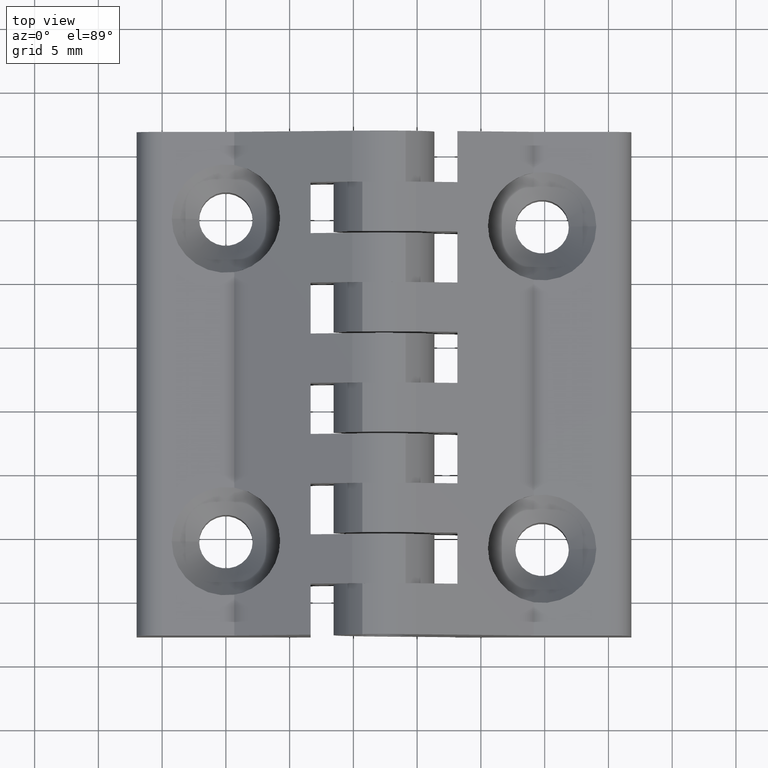
[diagram: clean part render]
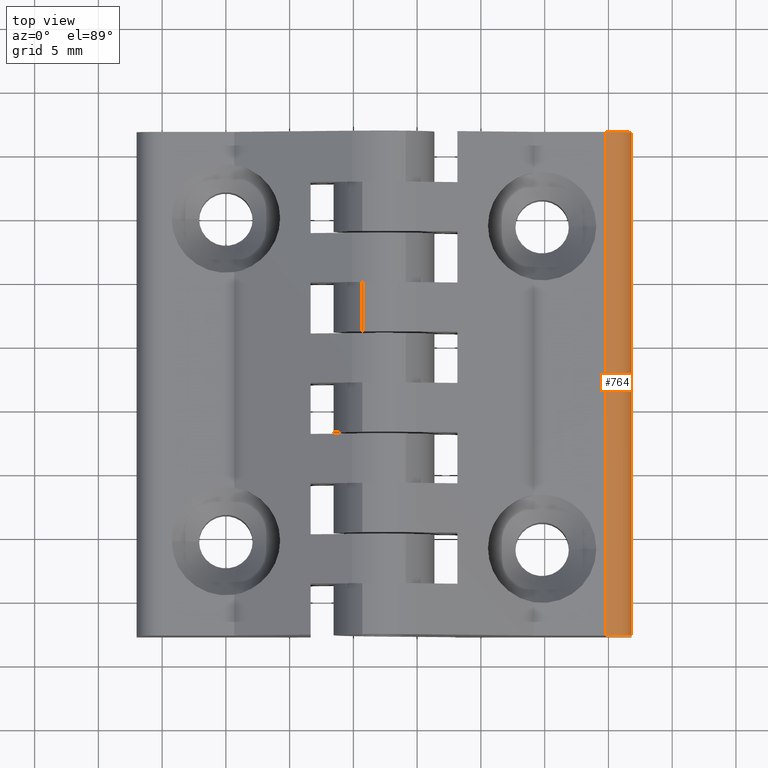
[diagram: same view with one face highlighted and labeled with its STEP entity id]
A machine part, top view. The second image highlights one B-rep face of the part: STEP entity #764.
In plain terms, the highlighted cylindrical surface (edge-blend (fillet) strip) has radius 2 mm, axis along (0, -1, 0).
Its self-contained STEP definition (entity closure, byte-faithful):
#706=CARTESIAN_POINT('',(31.799999999872881,6.799999999814439,6.999999999972005));
#707=VERTEX_POINT('',#706);
#714=CARTESIAN_POINT('',(31.799999999872881,-32.700000000027558,6.999999999972006));
#715=VERTEX_POINT('',#714);
#716=CARTESIAN_POINT('',(31.799999999872881,6.799999999814439,6.999999999972005));
#717=DIRECTION('',(0.0,-1.0,0.0));
#718=VECTOR('',#717,39.499999999841997);
#719=LINE('',#716,#718);
#720=EDGE_CURVE('',#707,#715,#719,.T.);
#732=CARTESIAN_POINT('',(29.799999999881010,6.799999999814439,6.999999999971948));
#733=DIRECTION('',(0.0,-1.0,6.123234E-017));
#734=DIRECTION('',(1.0,1.740328E-030,2.842171E-014));
#735=AXIS2_PLACEMENT_3D('',#732,#733,#734);
#736=CYLINDRICAL_SURFACE('',#735,1.999999999991871);
#737=CARTESIAN_POINT('',(29.799999999881010,6.799999999814440,8.999999999963819));
#738=VERTEX_POINT('',#737);
#739=CARTESIAN_POINT('',(29.799999999881010,6.799999999814439,6.999999999971949));
#740=DIRECTION('',(0.0,-1.0,6.123234E-017));
#741=DIRECTION('',(1.0,1.740328E-030,2.842171E-014));
#742=AXIS2_PLACEMENT_3D('',#739,#740,#741);
#743=CIRCLE('',#742,1.999999999991871);
#744=EDGE_CURVE('',#707,#738,#743,.T.);
#745=ORIENTED_EDGE('',*,*,#744,.T.);
#746=CARTESIAN_POINT('',(29.799999999881010,-32.700000000027558,8.999999999963821));
#747=VERTEX_POINT('',#746);
#748=CARTESIAN_POINT('',(29.799999999881010,6.799999999814440,8.999999999963819));
#749=DIRECTION('',(0.0,-1.0,0.0));
#750=VECTOR('',#749,39.499999999841997);
#751=LINE('',#748,#750);
#752=EDGE_CURVE('',#738,#747,#751,.T.);
#753=ORIENTED_EDGE('',*,*,#752,.T.);
#754=CARTESIAN_POINT('',(29.799999999881010,-32.700000000027558,6.999999999971950));
#755=DIRECTION('',(0.0,-1.0,6.123234E-017));
#756=DIRECTION('',(1.0,1.740328E-030,2.842171E-014));
#757=AXIS2_PLACEMENT_3D('',#754,#755,#756);
#758=CIRCLE('',#757,1.999999999991871);
#759=EDGE_CURVE('',#715,#747,#758,.T.);
#760=ORIENTED_EDGE('',*,*,#759,.F.);
#761=ORIENTED_EDGE('',*,*,#720,.F.);
#762=EDGE_LOOP('',(#745,#753,#760,#761));
#763=FACE_OUTER_BOUND('',#762,.T.);
#764=ADVANCED_FACE('',(#763),#736,.T.);